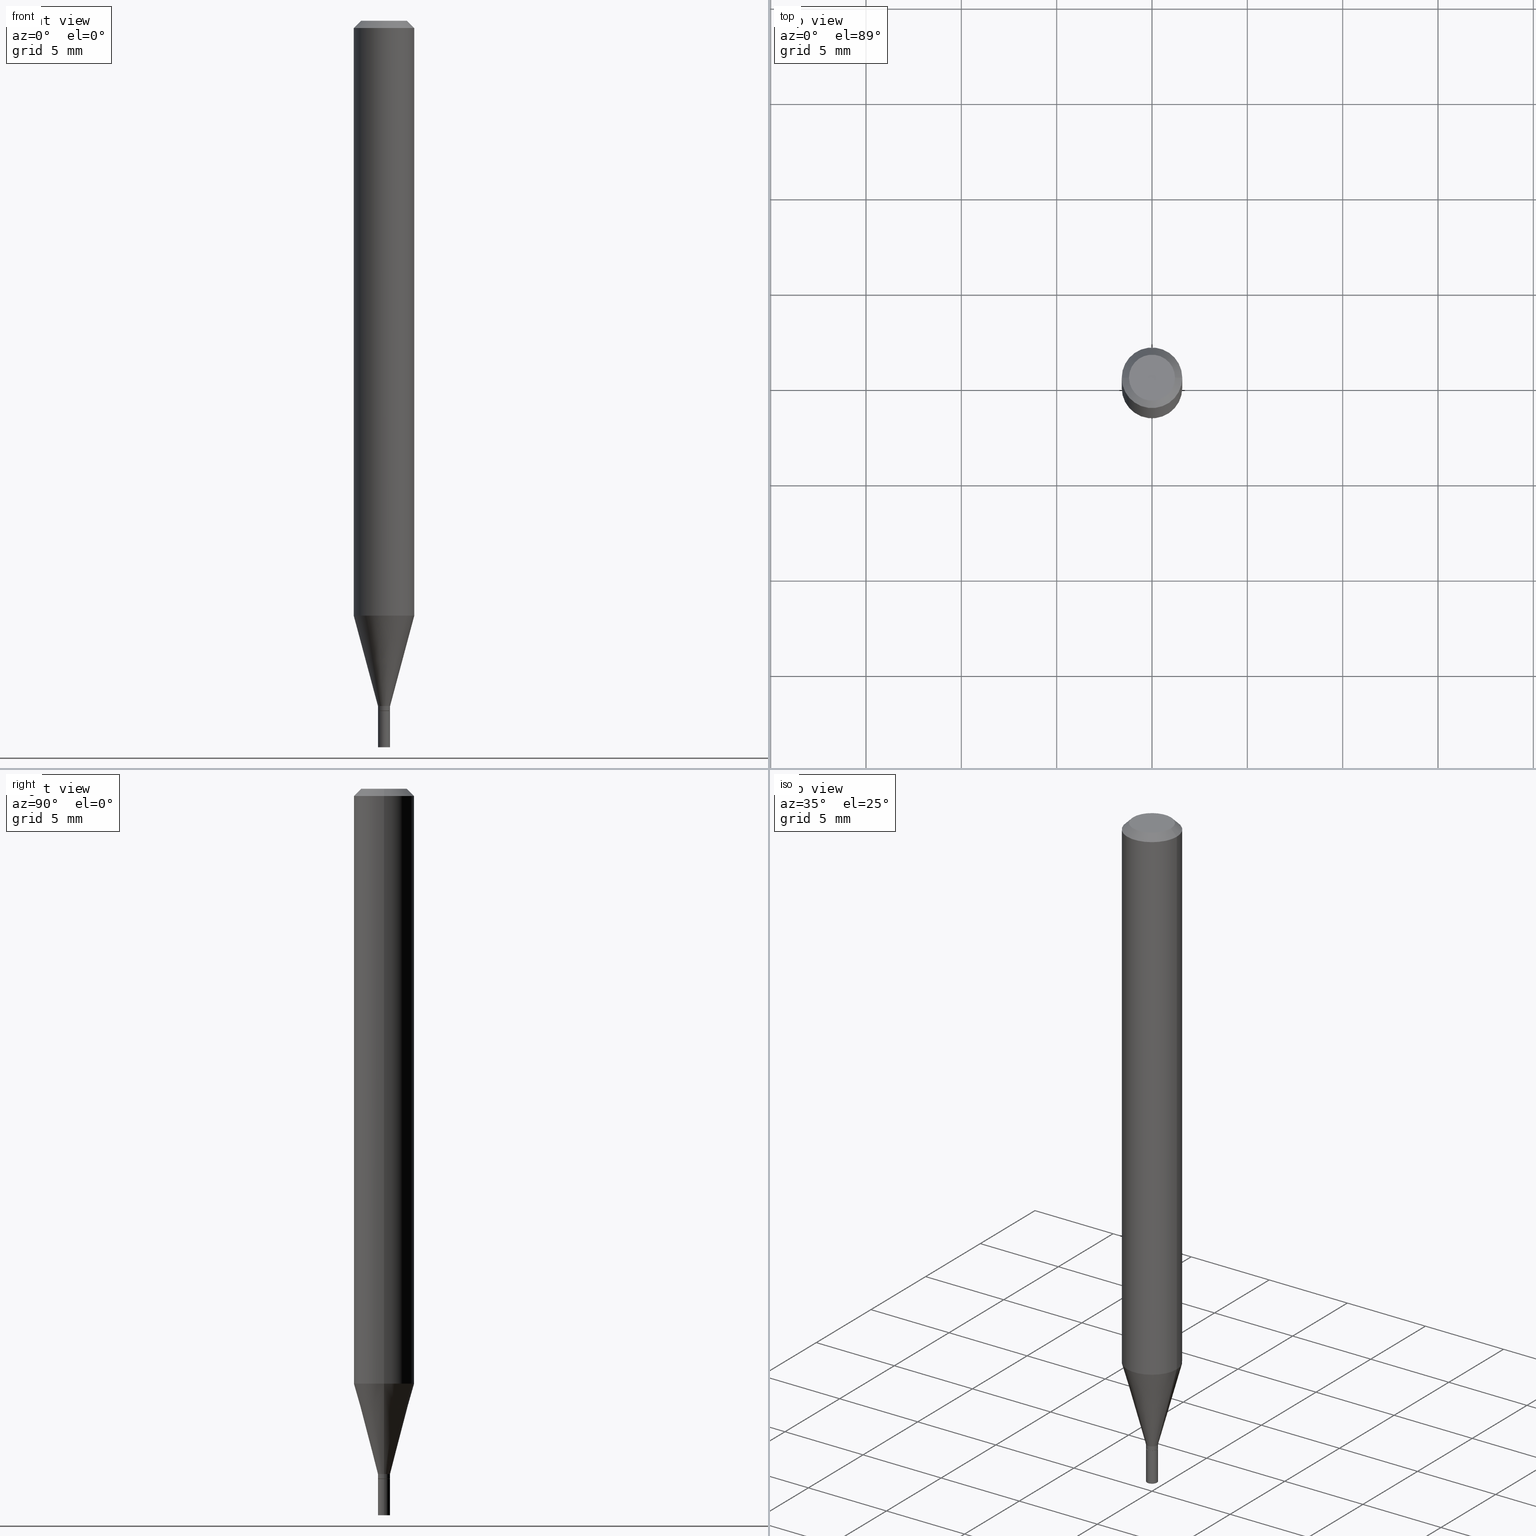
[diagram: canonical four-view strip — front | top / right | iso, engineering-drawing reading convention]
A machine part, canonical four-view strip (front | top / right | iso — engineering-drawing reading convention). The complete STEP part file that produces these views, byte-faithful:
ISO-10303-21;
HEADER;
FILE_DESCRIPTION (( 'STEP AP203' ),
    '1' );
FILE_NAME ('00831.STEP',
    '2024-03-19T22:36:11',
    ( '' ),
    ( '' ),
    'SwSTEP 2.0',
    'SolidWorks 2023',
    '' );
FILE_SCHEMA (( 'CONFIG_CONTROL_DESIGN' ));
ENDSEC;

DATA;
#1 = VECTOR ( 'NONE', #250, 39.37007874015748143 ) ;
#2 = ORIENTED_EDGE ( 'NONE', *, *, #413, .F. ) ;
#3 = CIRCLE ( 'NONE', #388, 0.06250000000000000000 ) ;
#4 = DIRECTION ( 'NONE',  ( -2.445468806185136597E-29, 3.491481338843145583E-15, 1.000000000000000000 ) ) ;
#5 = DIRECTION ( 'NONE',  ( 0.7071067811865676678, -7.319954787623323887E-15, -0.7071067811865273667 ) ) ;
#6 = CARTESIAN_POINT ( 'NONE',  ( 0.000000000000000000, 0.000000000000000000, 0.000000000000000000 ) ) ;
#7 = APPROVAL_STATUS ( 'not_yet_approved' ) ;
#8 = CIRCLE ( 'NONE', #134, 0.06250000000000000000 ) ;
#9 = CYLINDRICAL_SURFACE ( 'NONE', #191, 0.06250000000000000000 ) ;
#10 = DIRECTION ( 'NONE',  ( -2.445468806185136597E-29, 3.491481338843145583E-15, 1.000000000000000000 ) ) ;
#11 = APPROVAL_ROLE ( '' ) ;
#12 = EDGE_CURVE ( 'NONE', #447, #336, #194, .T. ) ;
#13 = EDGE_LOOP ( 'NONE', ( #398, #16, #119, #99 ) ) ;
#14 = DIRECTION ( 'NONE',  ( -2.445468806185136877E-29, 3.491481338843145188E-15, 1.000000000000000000 ) ) ;
#15 = DIRECTION ( 'NONE',  ( 1.000000000000000000, -6.982962677686262766E-15, 0.000000000000000000 ) ) ;
#16 = ORIENTED_EDGE ( 'NONE', *, *, #340, .T. ) ;
#17 = CIRCLE ( 'NONE', #150, 0.01249999999999992437 ) ;
#18 = DIRECTION ( 'NONE',  ( 0.7071067811865642261, -2.468850131082431399E-15, 0.7071067811865309194 ) ) ;
#19 = APPROVAL_ROLE ( '' ) ;
#20 = CIRCLE ( 'NONE', #416, 0.06250000000000000000 ) ;
#21 = ORIENTED_EDGE ( 'NONE', *, *, #428, .F. ) ;
#22 = CARTESIAN_POINT ( 'NONE',  ( 0.000000000000000000, 0.000000000000000000, 0.000000000000000000 ) ) ;
#23 = ORIENTED_EDGE ( 'NONE', *, *, #12, .T. ) ;
#24 = FACE_OUTER_BOUND ( 'NONE', #96, .T. ) ;
#25 = AXIS2_PLACEMENT_3D ( 'NONE', #466, #72, #293 ) ;
#26 = CYLINDRICAL_SURFACE ( 'NONE', #354, 0.01249999999999992437 ) ;
#27 = ADVANCED_FACE ( 'NONE', ( #287 ), #220, .T. ) ;
#28 = ADVANCED_FACE ( 'NONE', ( #456 ), #26, .T. ) ;
#29 = DIRECTION ( 'NONE',  ( 1.000000000000000000, -6.982962677686267499E-15, 4.852736867747366768E-29 ) ) ;
#30 = AXIS2_PLACEMENT_3D ( 'NONE', #185, #334, #256 ) ;
#31 = ADVANCED_FACE ( 'NONE', ( #459 ), #245, .T. ) ;
#32 = CARTESIAN_POINT ( 'NONE',  ( 8.728703347111317935E-17, 0.01249999999999502551, -1.425000000000000266 ) ) ;
#33 = ORIENTED_EDGE ( 'NONE', *, *, #203, .T. ) ;
#34 = CARTESIAN_POINT ( 'NONE',  ( -0.01249999999999992437, 8.881784197001198582E-17, -6.148668862818594743E-31 ) ) ;
#35 = CARTESIAN_POINT ( 'NONE',  ( 3.484793048813820547E-29, -4.975360907851483175E-15, -1.425000000000000266 ) ) ;
#36 = ORIENTED_EDGE ( 'NONE', *, *, #299, .F. ) ;
#37 = CARTESIAN_POINT ( 'NONE',  ( 0.01249999999999992437, -5.027733127934128282E-15, -1.415000000000000036 ) ) ;
#38 = ORIENTED_EDGE ( 'NONE', *, *, #244, .F. ) ;
#39 = AXIS2_PLACEMENT_3D ( 'NONE', #22, #427, #320 ) ;
#40 = ADVANCED_FACE ( 'NONE', ( #24 ), #404, .T. ) ;
#41 = CC_DESIGN_APPROVAL ( #207, ( #137 ) ) ;
#42 = CARTESIAN_POINT ( 'NONE',  ( 3.316907271900976096E-16, 0.04749999999999999362, -5.911810482194846144E-16 ) ) ;
#43 = ORIENTED_EDGE ( 'NONE', *, *, #440, .F. ) ;
#44 = DIRECTION ( 'NONE',  ( -2.445468806185136597E-29, 3.491481338843145583E-15, 1.000000000000000000 ) ) ;
#45 = CARTESIAN_POINT ( 'NONE',  ( 3.484793048813820547E-29, -4.975360907851483175E-15, -1.425000000000000266 ) ) ;
#46 = APPROVAL_DATE_TIME ( #376, #252 ) ;
#47 = AXIS2_PLACEMENT_3D ( 'NONE', #147, #107, #243 ) ;
#48 = DIRECTION ( 'NONE',  ( 1.000000000000000000, -6.982962677686262766E-15, 0.000000000000000000 ) ) ;
#49 = EDGE_CURVE ( 'NONE', #177, #189, #106, .T. ) ;
#50 = ORIENTED_EDGE ( 'NONE', *, *, #440, .T. ) ;
#51 = DIRECTION ( 'NONE',  ( -2.445468806185136597E-29, 3.491481338843145583E-15, 1.000000000000000000 ) ) ;
#52 = APPROVAL_DATE_TIME ( #90, #207 ) ;
#53 = ORIENTED_EDGE ( 'NONE', *, *, #49, .T. ) ;
#54 = DIRECTION ( 'NONE',  ( 1.000000000000000000, -6.982962677686258822E-15, 0.000000000000000000 ) ) ;
#55 = PERSON_AND_ORGANIZATION ( #168, #216 ) ;
#56 = ORIENTED_EDGE ( 'NONE', *, *, #283, .T. ) ;
#57 = ADVANCED_FACE ( 'NONE', ( #279 ), #454, .T. ) ;
#58 = CLOSED_SHELL ( 'NONE', ( #31, #120, #27, #117 ) ) ;
#59 = PERSON_AND_ORGANIZATION ( #168, #216 ) ;
#60 =( NAMED_UNIT ( * ) PLANE_ANGLE_UNIT ( ) SI_UNIT ( $, .RADIAN. ) );
#61 = CARTESIAN_POINT ( 'NONE',  ( 0.04749999999999999362, -4.035134999187593414E-16, -8.506713692488677736E-16 ) ) ;
#62 = CARTESIAN_POINT ( 'NONE',  ( 0.000000000000000000, 0.000000000000000000, 0.000000000000000000 ) ) ;
#63 = VECTOR ( 'NONE', #461, 39.37007874015748143 ) ;
#64 = PRODUCT_DEFINITION ( 'UNKNOWN', '', #137, #432 ) ;
#65 = DIRECTION ( 'NONE',  ( -2.445468806185136597E-29, 3.491481338843145583E-15, 1.000000000000000000 ) ) ;
#66 = LINE ( 'NONE', #148, #103 ) ;
#67 = APPLICATION_PROTOCOL_DEFINITION ( 'international standard', 'config_control_design', 1994, #70 ) ;
#68 = CARTESIAN_POINT ( 'NONE',  ( -0.01249999999999992437, -4.884797325212050253E-15, -1.424500000000000322 ) ) ;
#69 = ORIENTED_EDGE ( 'NONE', *, *, #413, .T. ) ;
#70 = APPLICATION_CONTEXT ( 'configuration controlled 3d designs of mechanical parts and assemblies' ) ;
#71 = ADVANCED_FACE ( 'NONE', ( #277 ), #433, .T. ) ;
#72 = DIRECTION ( 'NONE',  ( 2.445468806185136597E-29, -3.491481338843145583E-15, -1.000000000000000000 ) ) ;
#73 = ORIENTED_EDGE ( 'NONE', *, *, #299, .T. ) ;
#74 = LOCAL_TIME ( 18, 36, 11.00000000000000000, #132 ) ;
#75 = FACE_OUTER_BOUND ( 'NONE', #294, .T. ) ;
#76 = VERTEX_POINT ( 'NONE', #104 ) ;
#77 = FACE_OUTER_BOUND ( 'NONE', #142, .T. ) ;
#78 = ORIENTED_EDGE ( 'NONE', *, *, #399, .F. ) ;
#79 = DIRECTION ( 'NONE',  ( -1.000000000000000000, 6.982962677686266711E-15, 0.000000000000000000 ) ) ;
#80 = VERTEX_POINT ( 'NONE', #61 ) ;
#81 = AXIS2_PLACEMENT_3D ( 'NONE', #42, #121, #187 ) ;
#82 = VERTEX_POINT ( 'NONE', #393 ) ;
#83 = APPROVAL_PERSON_ORGANIZATION ( #136, #252, #273 ) ;
#84 = DIRECTION ( 'NONE',  ( -2.445468806185136597E-29, 3.491481338843145583E-15, 1.000000000000000000 ) ) ;
#85 = DIRECTION ( 'NONE',  ( -2.438088387897960049E-29, 3.491481338843145188E-15, 1.000000000000000000 ) ) ;
#86 = APPROVAL_STATUS ( 'not_yet_approved' ) ;
#87 = ORIENTED_EDGE ( 'NONE', *, *, #286, .F. ) ;
#88 = EDGE_CURVE ( 'NONE', #412, #177, #66, .T. ) ;
#89 = DIRECTION ( 'NONE',  ( -2.445468806185136597E-29, 3.491481338843145583E-15, 1.000000000000000000 ) ) ;
#90 = DATE_AND_TIME ( #239, #116 ) ;
#91 = ORIENTED_EDGE ( 'NONE', *, *, #280, .F. ) ;
#92 = VECTOR ( 'NONE', #124, 39.37007874015748143 ) ;
#93 = CARTESIAN_POINT ( 'NONE',  ( 3.668203209277705088E-31, -5.237222008264718399E-17, -0.01499999999999999944 ) ) ;
#94 = PERSON_AND_ORGANIZATION ( #168, #216 ) ;
#95 = EDGE_CURVE ( 'NONE', #362, #80, #310, .T. ) ;
#96 = EDGE_LOOP ( 'NONE', ( #53, #420, #101, #328 ) ) ;
#97 = FACE_OUTER_BOUND ( 'NONE', #341, .T. ) ;
#98 = PERSON_AND_ORGANIZATION ( #168, #216 ) ;
#99 = ORIENTED_EDGE ( 'NONE', *, *, #180, .F. ) ;
#100 = APPROVAL_STATUS ( 'not_yet_approved' ) ;
#101 = ORIENTED_EDGE ( 'NONE', *, *, #316, .F. ) ;
#102 =( LENGTH_UNIT ( ) NAMED_UNIT ( * ) SI_UNIT ( $, .METRE. ) );
#103 = VECTOR ( 'NONE', #353, 39.37007874015748143 ) ;
#104 = CARTESIAN_POINT ( 'NONE',  ( -0.01200000000000000198, -4.887446552386159876E-15, -1.425000000000000266 ) ) ;
#105 = ADVANCED_FACE ( 'NONE', ( #118 ), #179, .T. ) ;
#106 = CIRCLE ( 'NONE', #290, 0.01249999999999992437 ) ;
#107 = DIRECTION ( 'NONE',  ( -2.445468806185136597E-29, 3.491481338843145583E-15, 1.000000000000000000 ) ) ;
#108 = AXIS2_PLACEMENT_3D ( 'NONE', #197, #265, #162 ) ;
#109 = CARTESIAN_POINT ( 'NONE',  ( -0.06250000000000000000, 3.840629472727444916E-16, -0.01499999999999999944 ) ) ;
#110 = VERTEX_POINT ( 'NONE', #223 ) ;
#111 = DIRECTION ( 'NONE',  ( 1.000000000000000000, -6.982962677686266711E-15, 0.000000000000000000 ) ) ;
#112 = CARTESIAN_POINT ( 'NONE',  ( -0.01250000000000000069, -5.017473616088089257E-15, -1.500000000000000222 ) ) ;
#113 = CIRCLE ( 'NONE', #30, 0.04749999999999999362 ) ;
#114 = ORIENTED_EDGE ( 'NONE', *, *, #213, .T. ) ;
#115 = ORIENTED_EDGE ( 'NONE', *, *, #180, .T. ) ;
#116 = LOCAL_TIME ( 18, 36, 11.00000000000000000, #266 ) ;
#117 = ADVANCED_FACE ( 'NONE', ( #155 ), #323, .F. ) ;
#118 = FACE_OUTER_BOUND ( 'NONE', #380, .T. ) ;
#119 = ORIENTED_EDGE ( 'NONE', *, *, #88, .T. ) ;
#120 = ADVANCED_FACE ( 'NONE', ( #462 ), #152, .F. ) ;
#121 = DIRECTION ( 'NONE',  ( 2.438088387897960049E-29, -3.491481338843145188E-15, -1.000000000000000000 ) ) ;
#122 = EDGE_LOOP ( 'NONE', ( #195, #115, #438, #78 ) ) ;
#123 = CARTESIAN_POINT ( 'NONE',  ( 3.483570314410727746E-29, -4.973615167182062460E-15, -1.424500000000000322 ) ) ;
#124 = DIRECTION ( 'NONE',  ( -2.445468806185136877E-29, 3.491481338843145188E-15, 1.000000000000000000 ) ) ;
#125 = AXIS2_PLACEMENT_3D ( 'NONE', #247, #391, #181 ) ;
#126 = LINE ( 'NONE', #297, #246 ) ;
#127 = CC_DESIGN_PERSON_AND_ORGANIZATION_ASSIGNMENT ( #55, #209, ( #137 ) ) ;
#128 = CARTESIAN_POINT ( 'NONE',  ( 3.484793048813820547E-29, -4.975360907851483175E-15, -1.425000000000000266 ) ) ;
#129 = DATE_TIME_ROLE ( 'creation_date' ) ;
#130 = VERTEX_POINT ( 'NONE', #68 ) ;
#131 = DIRECTION ( 'NONE',  ( -2.445468806185136877E-29, 3.491481338843145188E-15, 1.000000000000000000 ) ) ;
#132 = COORDINATED_UNIVERSAL_TIME_OFFSET ( 5, 0, .BEHIND. ) ;
#133 =( CONVERSION_BASED_UNIT ( 'INCH', #387 ) LENGTH_UNIT ( ) NAMED_UNIT ( #321 ) );
#134 = AXIS2_PLACEMENT_3D ( 'NONE', #229, #308, #15 ) ;
#135 = DIRECTION ( 'NONE',  ( -2.445468806185136597E-29, 3.491481338843145583E-15, 1.000000000000000000 ) ) ;
#136 = PERSON_AND_ORGANIZATION ( #168, #216 ) ;
#137 = PRODUCT_DEFINITION_FORMATION_WITH_SPECIFIED_SOURCE ( 'ANY', '', #417, .NOT_KNOWN. ) ;
#138 = EDGE_CURVE ( 'NONE', #177, #110, #217, .T. ) ;
#139 = ORIENTED_EDGE ( 'NONE', *, *, #88, .F. ) ;
#140 = PRODUCT_DEFINITION_SHAPE ( 'NONE', 'NONE',  #64 ) ;
#141 = APPLICATION_CONTEXT ( 'configuration controlled 3d designs of mechanical parts and assemblies' ) ;
#142 = EDGE_LOOP ( 'NONE', ( #226, #165, #69, #409 ) ) ;
#143 = AXIS2_PLACEMENT_3D ( 'NONE', #178, #390, #29 ) ;
#144 = DIRECTION ( 'NONE',  ( 1.000000000000000000, -6.982962677686267499E-15, 4.876176775795935793E-29 ) ) ;
#145 = AXIS2_PLACEMENT_3D ( 'NONE', #45, #89, #208 ) ;
#146 = SHAPE_DEFINITION_REPRESENTATION ( #140, #274 ) ;
#147 = CARTESIAN_POINT ( 'NONE',  ( 3.460338360751968441E-29, -4.940446094463050737E-15, -1.415000000000000036 ) ) ;
#148 = CARTESIAN_POINT ( 'NONE',  ( 0.01249999999999992437, -8.728703347107781619E-17, 6.095220969744882957E-31 ) ) ;
#149 = ADVANCED_FACE ( 'NONE', ( #363 ), #159, .F. ) ;
#150 = AXIS2_PLACEMENT_3D ( 'NONE', #435, #357, #437 ) ;
#151 = LOCAL_TIME ( 18, 36, 11.00000000000000000, #442 ) ;
#152 = PLANE ( 'NONE',  #369 ) ;
#153 = CARTESIAN_POINT ( 'NONE',  ( 3.584916967085606921E-29, -5.356492647442320375E-15, -1.500000000000000222 ) ) ;
#154 = ORIENTED_EDGE ( 'NONE', *, *, #49, .F. ) ;
#155 = FACE_OUTER_BOUND ( 'NONE', #267, .T. ) ;
#156 = ORIENTED_EDGE ( 'NONE', *, *, #367, .T. ) ;
#157 = EDGE_CURVE ( 'NONE', #351, #233, #224, .T. ) ;
#158 = CONICAL_SURFACE ( 'NONE', #145, 0.01200000000000000198, 0.7853981633974718157 ) ;
#159 = PLANE ( 'NONE',  #81 ) ;
#160 = ORIENTED_EDGE ( 'NONE', *, *, #367, .F. ) ;
#161 = DIRECTION ( 'NONE',  ( 1.000000000000000000, -6.982962677686250144E-15, 0.000000000000000000 ) ) ;
#162 = DIRECTION ( 'NONE',  ( 1.000000000000000000, -6.982962677686250144E-15, 0.000000000000000000 ) ) ;
#163 = ADVANCED_FACE ( 'NONE', ( #75 ), #317, .T. ) ;
#164 = CIRCLE ( 'NONE', #424, 0.01250000000000000069 ) ;
#165 = ORIENTED_EDGE ( 'NONE', *, *, #364, .T. ) ;
#166 = CARTESIAN_POINT ( 'NONE',  ( -0.04749999999999999362, 3.578768372314195715E-16, -8.506713692488727040E-16 ) ) ;
#167 = LINE ( 'NONE', #305, #372 ) ;
#168 = PERSON ( 'UNSPECIFIED', 'UNSPECIFIED', 'UNSPECIFIED', ('UNSPECIFIED'), ('UNSPECIFIED'), ('UNSPECIFIED') ) ;
#169 = PERSON_AND_ORGANIZATION_ROLE ( 'design_supplier' ) ;
#170 = ORIENTED_EDGE ( 'NONE', *, *, #373, .F. ) ;
#171 = DIRECTION ( 'NONE',  ( 1.000000000000000000, -6.982962677686294321E-15, 0.000000000000000000 ) ) ;
#172 = DATE_AND_TIME ( #338, #460 ) ;
#173 = ORIENTED_EDGE ( 'NONE', *, *, #347, .F. ) ;
#174 = CYLINDRICAL_SURFACE ( 'NONE', #457, 0.01249999999999992437 ) ;
#175 = COORDINATED_UNIVERSAL_TIME_OFFSET ( 5, 0, .BEHIND. ) ;
#176 = SECURITY_CLASSIFICATION ( '', '', #306 ) ;
#177 = VERTEX_POINT ( 'NONE', #219 ) ;
#178 = CARTESIAN_POINT ( 'NONE',  ( 2.080290297812910479E-44, -2.970103211220577886E-30, -8.506713692488703374E-16 ) ) ;
#179 = CONICAL_SURFACE ( 'NONE', #232, 0.06250000000000000000, 0.7853981633974768117 ) ;
#180 = EDGE_CURVE ( 'NONE', #189, #177, #17, .T. ) ;
#181 = DIRECTION ( 'NONE',  ( 1.000000000000000000, -6.982962677686258822E-15, 0.000000000000000000 ) ) ;
#182 = DIRECTION ( 'NONE',  ( -2.445468806185136597E-29, 3.491481338843145583E-15, 1.000000000000000000 ) ) ;
#183 = VECTOR ( 'NONE', #257, 39.37007874015748143 ) ;
#184 = LINE ( 'NONE', #284, #259 ) ;
#185 = CARTESIAN_POINT ( 'NONE',  ( 2.080290297812910479E-44, -2.970103211220577886E-30, -8.506713692488703374E-16 ) ) ;
#186 = ORIENTED_EDGE ( 'NONE', *, *, #463, .T. ) ;
#187 = DIRECTION ( 'NONE',  ( -1.000000000000000000, 6.982962677686265922E-15, -4.876176775795935793E-29 ) ) ;
#188 = ORIENTED_EDGE ( 'NONE', *, *, #347, .T. ) ;
#189 = VERTEX_POINT ( 'NONE', #360 ) ;
#190 = DIRECTION ( 'NONE',  ( -2.445468806185136597E-29, 3.491481338843145583E-15, 1.000000000000000000 ) ) ;
#191 = AXIS2_PLACEMENT_3D ( 'NONE', #6, #199, #234 ) ;
#192 = AXIS2_PLACEMENT_3D ( 'NONE', #263, #84, #171 ) ;
#193 = LINE ( 'NONE', #397, #63 ) ;
#194 = LINE ( 'NONE', #335, #92 ) ;
#195 = ORIENTED_EDGE ( 'NONE', *, *, #196, .F. ) ;
#196 = EDGE_CURVE ( 'NONE', #189, #447, #193, .T. ) ;
#197 = CARTESIAN_POINT ( 'NONE',  ( 3.484793048813820547E-29, -4.975360907851483175E-15, -1.425000000000000266 ) ) ;
#198 = DIRECTION ( 'NONE',  ( 1.000000000000000000, 0.000000000000000000, 0.000000000000000000 ) ) ;
#199 = DIRECTION ( 'NONE',  ( -2.445468806185136597E-29, 3.491481338843145583E-15, 1.000000000000000000 ) ) ;
#200 = VERTEX_POINT ( 'NONE', #401 ) ;
#201 = FACE_OUTER_BOUND ( 'NONE', #13, .T. ) ;
#202 = PERSON_AND_ORGANIZATION_ROLE ( 'design_owner' ) ;
#203 = EDGE_CURVE ( 'NONE', #80, #362, #113, .T. ) ;
#204 = ORIENTED_EDGE ( 'NONE', *, *, #364, .F. ) ;
#205 = DIRECTION ( 'NONE',  ( 1.000000000000000000, -6.982962677686266711E-15, 0.000000000000000000 ) ) ;
#206 = COORDINATED_UNIVERSAL_TIME_OFFSET ( 5, 0, .BEHIND. ) ;
#207 = APPROVAL ( #100, 'UNSPECIFIED' ) ;
#208 = DIRECTION ( 'NONE',  ( 1.000000000000000000, -6.982962677686250144E-15, 0.000000000000000000 ) ) ;
#209 = PERSON_AND_ORGANIZATION_ROLE ( 'creator' ) ;
#210 = ORIENTED_EDGE ( 'NONE', *, *, #434, .T. ) ;
#211 = EDGE_CURVE ( 'NONE', #80, #251, #184, .T. ) ;
#212 = EDGE_LOOP ( 'NONE', ( #276, #445, #292, #43 ) ) ;
#213 = EDGE_CURVE ( 'NONE', #200, #76, #215, .T. ) ;
#214 = DIRECTION ( 'NONE',  ( 0.000000000000000000, 0.000000000000000000, 1.000000000000000000 ) ) ;
#215 = CIRCLE ( 'NONE', #385, 0.01200000000000000198 ) ;
#216 = ORGANIZATION ( 'UNSPECIFIED', 'UNSPECIFIED', '' ) ;
#217 = LINE ( 'NONE', #37, #322 ) ;
#218 = AXIS2_PLACEMENT_3D ( 'NONE', #128, #85, #383 ) ;
#219 = CARTESIAN_POINT ( 'NONE',  ( 0.01249999999999992437, -5.027733127934128282E-15, -1.415000000000000036 ) ) ;
#220 = CYLINDRICAL_SURFACE ( 'NONE', #330, 0.01250000000000000069 ) ;
#221 = CARTESIAN_POINT ( 'NONE',  ( 3.668203209277705088E-31, -5.237222008264718399E-17, -0.01499999999999999944 ) ) ;
#222 = CARTESIAN_POINT ( 'NONE',  ( 3.484793048813820547E-29, -4.975360907851483175E-15, -1.425000000000000266 ) ) ;
#223 = CARTESIAN_POINT ( 'NONE',  ( 0.06250000000000001388, -4.725361974306381794E-15, -1.228397459621556109 ) ) ;
#224 = CIRCLE ( 'NONE', #349, 0.01250000000000000069 ) ;
#225 = EDGE_LOOP ( 'NONE', ( #173, #345, #368, #311 ) ) ;
#226 = ORIENTED_EDGE ( 'NONE', *, *, #434, .F. ) ;
#227 = CIRCLE ( 'NONE', #108, 0.01200000000000000198 ) ;
#228 = CARTESIAN_POINT ( 'NONE',  ( 0.01200000000000000198, -5.059156459983718502E-15, -1.425000000000000266 ) ) ;
#229 = CARTESIAN_POINT ( 'NONE',  ( 3.004007669101581496E-29, -4.288926806950990124E-15, -1.228397459621556109 ) ) ;
#230 = CALENDAR_DATE ( 2024, 19, 3 ) ;
#231 = DIRECTION ( 'NONE',  ( 1.000000000000000000, -6.982962677686294321E-15, 0.000000000000000000 ) ) ;
#232 = AXIS2_PLACEMENT_3D ( 'NONE', #221, #249, #79 ) ;
#233 = VERTEX_POINT ( 'NONE', #112 ) ;
#234 = DIRECTION ( 'NONE',  ( 1.000000000000000000, -6.982962677686266711E-15, 4.876176775795935793E-29 ) ) ;
#235 = CC_DESIGN_PERSON_AND_ORGANIZATION_ASSIGNMENT ( #444, #202, ( #417 ) ) ;
#236 = PERSON_AND_ORGANIZATION_ROLE ( 'classification_officer' ) ;
#237 = DIRECTION ( 'NONE',  ( -2.445468806185136597E-29, 3.491481338843145583E-15, 1.000000000000000000 ) ) ;
#238 = ORIENTED_EDGE ( 'NONE', *, *, #157, .T. ) ;
#239 = CALENDAR_DATE ( 2024, 19, 3 ) ;
#240 = CIRCLE ( 'NONE', #270, 0.01250000000000000069 ) ;
#241 = ORIENTED_EDGE ( 'NONE', *, *, #95, .F. ) ;
#242 = VECTOR ( 'NONE', #14, 39.37007874015748143 ) ;
#243 = DIRECTION ( 'NONE',  ( 1.000000000000000000, -6.982962677686258822E-15, 0.000000000000000000 ) ) ;
#244 = EDGE_CURVE ( 'NONE', #351, #82, #254, .T. ) ;
#245 = CYLINDRICAL_SURFACE ( 'NONE', #39, 0.01250000000000000069 ) ;
#246 = VECTOR ( 'NONE', #339, 39.37007874015748143 ) ;
#247 = CARTESIAN_POINT ( 'NONE',  ( 3.460338360751968441E-29, -4.940446094463050737E-15, -1.415000000000000036 ) ) ;
#248 = APPROVAL_PERSON_ORGANIZATION ( #382, #333, #19 ) ;
#249 = DIRECTION ( 'NONE',  ( 2.445468806185136597E-29, -3.491481338843145583E-15, -1.000000000000000000 ) ) ;
#250 = DIRECTION ( 'NONE',  ( -0.7071067811865676678, 2.468850131082468081E-15, -0.7071067811865273667 ) ) ;
#251 = VERTEX_POINT ( 'NONE', #400 ) ;
#252 = APPROVAL ( #7, 'UNSPECIFIED' ) ;
#253 = CARTESIAN_POINT ( 'NONE',  ( -0.06250000000000001388, -3.844837597100926719E-15, -1.228397459621556109 ) ) ;
#254 = LINE ( 'NONE', #430, #183 ) ;
#255 = VECTOR ( 'NONE', #381, 39.37007874015748143 ) ;
#256 = DIRECTION ( 'NONE',  ( 1.000000000000000000, -6.982962677686267499E-15, 4.852736867747366768E-29 ) ) ;
#257 = DIRECTION ( 'NONE',  ( -2.445468806185136877E-29, 3.491481338843145188E-15, 1.000000000000000000 ) ) ;
#258 = EDGE_LOOP ( 'NONE', ( #238, #188, #36, #38 ) ) ;
#259 = VECTOR ( 'NONE', #5, 39.37007874015748143 ) ;
#260 = CARTESIAN_POINT ( 'NONE',  ( -0.01250000000000000069, -5.017473616088089257E-15, -1.425000000000000266 ) ) ;
#261 = ORIENTED_EDGE ( 'NONE', *, *, #203, .F. ) ;
#262 = CIRCLE ( 'NONE', #429, 0.06250000000000000000 ) ;
#263 = CARTESIAN_POINT ( 'NONE',  ( 3.668203209277704895E-29, -5.237222008264718177E-15, -1.500000000000000222 ) ) ;
#264 = CALENDAR_DATE ( 2024, 19, 3 ) ;
#265 = DIRECTION ( 'NONE',  ( -2.445468806185136597E-29, 3.491481338843145583E-15, 1.000000000000000000 ) ) ;
#266 = COORDINATED_UNIVERSAL_TIME_OFFSET ( 5, 0, .BEHIND. ) ;
#267 = EDGE_LOOP ( 'NONE', ( #73, #56 ) ) ;
#268 = ADVANCED_FACE ( 'NONE', ( #77 ), #396, .T. ) ;
#269 = LINE ( 'NONE', #415, #255 ) ;
#270 = AXIS2_PLACEMENT_3D ( 'NONE', #394, #10, #231 ) ;
#271 = CC_DESIGN_APPROVAL ( #252, ( #176 ) ) ;
#272 = CARTESIAN_POINT ( 'NONE',  ( 3.668203209277705088E-31, -5.237222008264718399E-17, -0.01499999999999999944 ) ) ;
#273 = APPROVAL_ROLE ( '' ) ;
#274 = ADVANCED_BREP_SHAPE_REPRESENTATION ( '00831', ( #365, #370, #312 ), #450 ) ;
#275 = APPROVAL_DATE_TIME ( #314, #333 ) ;
#276 = ORIENTED_EDGE ( 'NONE', *, *, #12, .F. ) ;
#277 = FACE_OUTER_BOUND ( 'NONE', #122, .T. ) ;
#278 = AXIS2_PLACEMENT_3D ( 'NONE', #123, #418, #54 ) ;
#279 = FACE_OUTER_BOUND ( 'NONE', #436, .T. ) ;
#280 = EDGE_CURVE ( 'NONE', #362, #336, #295, .T. ) ;
#281 = AXIS2_PLACEMENT_3D ( 'NONE', #32, #288, #324 ) ;
#282 = CARTESIAN_POINT ( 'NONE',  ( 0.000000000000000000, 0.000000000000000000, 0.000000000000000000 ) ) ;
#283 = EDGE_CURVE ( 'NONE', #350, #82, #240, .T. ) ;
#284 = CARTESIAN_POINT ( 'NONE',  ( 0.06250000000000000000, -4.811533449433679005E-16, -0.01499999999999999944 ) ) ;
#285 = UNCERTAINTY_MEASURE_WITH_UNIT (LENGTH_MEASURE( 1.000000000000000082E-05 ), #133, 'distance_accuracy_value', 'NONE');
#286 = EDGE_CURVE ( 'NONE', #412, #130, #377, .T. ) ;
#287 = FACE_OUTER_BOUND ( 'NONE', #225, .T. ) ;
#288 = DIRECTION ( 'NONE',  ( 2.438088387897960049E-29, -3.491481338843145188E-15, -1.000000000000000000 ) ) ;
#289 = DIRECTION ( 'NONE',  ( 1.000000000000000000, -6.982962677686267499E-15, 4.876176775795936353E-29 ) ) ;
#290 = AXIS2_PLACEMENT_3D ( 'NONE', #318, #65, #355 ) ;
#291 = DIRECTION ( 'NONE',  ( 1.000000000000000000, -6.982962677686250144E-15, 0.000000000000000000 ) ) ;
#292 = ORIENTED_EDGE ( 'NONE', *, *, #428, .T. ) ;
#293 = DIRECTION ( 'NONE',  ( -1.000000000000000000, 6.982962677686266711E-15, 0.000000000000000000 ) ) ;
#294 = EDGE_LOOP ( 'NONE', ( #304, #241, #315, #50 ) ) ;
#295 = LINE ( 'NONE', #109, #1 ) ;
#296 = AXIS2_PLACEMENT_3D ( 'NONE', #374, #342, #408 ) ;
#297 = CARTESIAN_POINT ( 'NONE',  ( -0.01250000000000000069, 8.881784197001252816E-17, -6.148668862818633278E-31 ) ) ;
#298 = DATE_AND_TIME ( #419, #74 ) ;
#299 = EDGE_CURVE ( 'NONE', #82, #350, #164, .T. ) ;
#300 = ORIENTED_EDGE ( 'NONE', *, *, #157, .F. ) ;
#301 = LOCAL_TIME ( 18, 36, 11.00000000000000000, #175 ) ;
#302 = CARTESIAN_POINT ( 'NONE',  ( 0.01249999999999992437, -5.060902200653140005E-15, -1.424500000000000322 ) ) ;
#303 = ADVANCED_FACE ( 'NONE', ( #405 ), #348, .F. ) ;
#304 = ORIENTED_EDGE ( 'NONE', *, *, #211, .F. ) ;
#305 = CARTESIAN_POINT ( 'NONE',  ( 0.06250000000000000000, -4.364351673553916694E-16, 3.047610484872459871E-30 ) ) ;
#306 = SECURITY_CLASSIFICATION_LEVEL ( 'unclassified' ) ;
#307 = ORIENTED_EDGE ( 'NONE', *, *, #95, .T. ) ;
#308 = DIRECTION ( 'NONE',  ( -2.445468806185136597E-29, 3.491481338843145583E-15, 1.000000000000000000 ) ) ;
#309 = DATE_TIME_ROLE ( 'classification_date' ) ;
#310 = CIRCLE ( 'NONE', #143, 0.04749999999999999362 ) ;
#311 = ORIENTED_EDGE ( 'NONE', *, *, #283, .F. ) ;
#312 = AXIS2_PLACEMENT_3D ( 'NONE', #62, #214, #198 ) ;
#313 = CARTESIAN_POINT ( 'NONE',  ( 0.000000000000000000, 0.000000000000000000, 0.000000000000000000 ) ) ;
#314 = DATE_AND_TIME ( #264, #301 ) ;
#315 = ORIENTED_EDGE ( 'NONE', *, *, #280, .T. ) ;
#316 = EDGE_CURVE ( 'NONE', #110, #447, #8, .T. ) ;
#317 = CONICAL_SURFACE ( 'NONE', #25, 0.06250000000000000000, 0.7853981633974768117 ) ;
#318 = CARTESIAN_POINT ( 'NONE',  ( 3.460338360751968441E-29, -4.940446094463050737E-15, -1.415000000000000036 ) ) ;
#319 = ADVANCED_FACE ( 'NONE', ( #449 ), #9, .T. ) ;
#320 = DIRECTION ( 'NONE',  ( 1.000000000000000000, -6.982962677686267499E-15, 4.876176775795936353E-29 ) ) ;
#321 = DIMENSIONAL_EXPONENTS ( 1.000000000000000000, 0.000000000000000000, 0.000000000000000000, 0.000000000000000000, 0.000000000000000000, 0.000000000000000000, 0.000000000000000000 ) ;
#322 = VECTOR ( 'NONE', #439, 39.37007874015748143 ) ;
#323 = PLANE ( 'NONE',  #281 ) ;
#324 = DIRECTION ( 'NONE',  ( -1.000000000000000000, 6.982962677686265922E-15, -4.876176775795935793E-29 ) ) ;
#325 = CARTESIAN_POINT ( 'NONE',  ( 0.000000000000000000, 0.000000000000000000, 0.000000000000000000 ) ) ;
#326 = ORIENTED_EDGE ( 'NONE', *, *, #211, .T. ) ;
#327 = CARTESIAN_POINT ( 'NONE',  ( 3.668203209277704895E-29, -5.237222008264718177E-15, -1.500000000000000222 ) ) ;
#328 = ORIENTED_EDGE ( 'NONE', *, *, #138, .F. ) ;
#329 = EDGE_LOOP ( 'NONE', ( #307, #33 ) ) ;
#330 = AXIS2_PLACEMENT_3D ( 'NONE', #325, #464, #289 ) ;
#331 = DIRECTION ( 'NONE',  ( 1.000000000000000000, -6.982962677686294321E-15, 0.000000000000000000 ) ) ;
#332 = CC_DESIGN_APPROVAL ( #333, ( #64 ) ) ;
#333 = APPROVAL ( #86, 'UNSPECIFIED' ) ;
#334 = DIRECTION ( 'NONE',  ( -2.445468806185136597E-29, 3.491481338843145583E-15, 1.000000000000000000 ) ) ;
#335 = CARTESIAN_POINT ( 'NONE',  ( -0.06250000000000000000, 4.440892098500626162E-16, -3.074334431409316114E-30 ) ) ;
#336 = VERTEX_POINT ( 'NONE', #443 ) ;
#337 = DIRECTION ( 'NONE',  ( 1.000000000000000000, -6.982962677686267499E-15, 4.876176775795935793E-29 ) ) ;
#338 = CALENDAR_DATE ( 2024, 19, 3 ) ;
#339 = DIRECTION ( 'NONE',  ( -2.445468806185136877E-29, 3.491481338843145188E-15, 1.000000000000000000 ) ) ;
#340 = EDGE_CURVE ( 'NONE', #130, #412, #448, .T. ) ;
#341 = EDGE_LOOP ( 'NONE', ( #114, #210, #87, #2 ) ) ;
#342 = DIRECTION ( 'NONE',  ( -2.445468806185136597E-29, 3.491481338843145583E-15, 1.000000000000000000 ) ) ;
#343 = PERSON_AND_ORGANIZATION ( #168, #216 ) ;
#344 = CARTESIAN_POINT ( 'NONE',  ( 3.484793048813820547E-29, -4.975360907851483175E-15, -1.425000000000000266 ) ) ;
#345 = ORIENTED_EDGE ( 'NONE', *, *, #373, .T. ) ;
#346 = CC_DESIGN_DATE_AND_TIME_ASSIGNMENT ( #172, #309, ( #176 ) ) ;
#347 = EDGE_CURVE ( 'NONE', #233, #350, #126, .T. ) ;
#348 = PLANE ( 'NONE',  #218 ) ;
#349 = AXIS2_PLACEMENT_3D ( 'NONE', #327, #4, #331 ) ;
#350 = VERTEX_POINT ( 'NONE', #260 ) ;
#351 = VERTEX_POINT ( 'NONE', #375 ) ;
#352 = LINE ( 'NONE', #34, #242 ) ;
#353 = DIRECTION ( 'NONE',  ( -2.445468806185136877E-29, 3.491481338843145188E-15, 1.000000000000000000 ) ) ;
#354 = AXIS2_PLACEMENT_3D ( 'NONE', #386, #389, #144 ) ;
#355 = DIRECTION ( 'NONE',  ( 1.000000000000000000, -6.982962677686258822E-15, 0.000000000000000000 ) ) ;
#356 = CC_DESIGN_PERSON_AND_ORGANIZATION_ASSIGNMENT ( #59, #169, ( #137 ) ) ;
#357 = DIRECTION ( 'NONE',  ( -2.445468806185136597E-29, 3.491481338843145583E-15, 1.000000000000000000 ) ) ;
#358 =( NAMED_UNIT ( * ) SI_UNIT ( $, .STERADIAN. ) SOLID_ANGLE_UNIT ( ) );
#359 = CLOSED_SHELL ( 'NONE', ( #28, #402, #105, #57, #40, #71, #319, #163, #149, #303, #268, #422 ) ) ;
#360 = CARTESIAN_POINT ( 'NONE',  ( -0.01249999999999992437, -4.348232924796983019E-15, -1.415000000000000036 ) ) ;
#361 = CIRCLE ( 'NONE', #192, 0.01250000000000000069 ) ;
#362 = VERTEX_POINT ( 'NONE', #166 ) ;
#363 = FACE_OUTER_BOUND ( 'NONE', #329, .T. ) ;
#364 = EDGE_CURVE ( 'NONE', #76, #200, #227, .T. ) ;
#365 = MANIFOLD_SOLID_BREP ( 'Body-Move/Copy2[1]', #58 ) ;
#366 = DIRECTION ( 'NONE',  ( -2.438088387897960049E-29, 3.491481338843145188E-15, 1.000000000000000000 ) ) ;
#367 = EDGE_CURVE ( 'NONE', #251, #336, #262, .T. ) ;
#368 = ORIENTED_EDGE ( 'NONE', *, *, #244, .T. ) ;
#369 = AXIS2_PLACEMENT_3D ( 'NONE', #153, #366, #371 ) ;
#370 = MANIFOLD_SOLID_BREP ( 'Body-Move/Copy2[2]', #359 ) ;
#371 = DIRECTION ( 'NONE',  ( 1.000000000000000000, -6.982962677686265922E-15, 4.876176775795935793E-29 ) ) ;
#372 = VECTOR ( 'NONE', #131, 39.37007874015748143 ) ;
#373 = EDGE_CURVE ( 'NONE', #233, #351, #361, .T. ) ;
#374 = CARTESIAN_POINT ( 'NONE',  ( 3.483570314410727746E-29, -4.973615167182062460E-15, -1.424500000000000322 ) ) ;
#375 = CARTESIAN_POINT ( 'NONE',  ( 0.01250000000000000069, -5.324509041735797299E-15, -1.500000000000000222 ) ) ;
#376 = DATE_AND_TIME ( #230, #151 ) ;
#377 = CIRCLE ( 'NONE', #296, 0.01249999999999992437 ) ;
#378 = LINE ( 'NONE', #228, #392 ) ;
#379 = APPROVAL_PERSON_ORGANIZATION ( #98, #207, #11 ) ;
#380 = EDGE_LOOP ( 'NONE', ( #261, #326, #156, #91 ) ) ;
#381 = DIRECTION ( 'NONE',  ( -0.7071067811865642261, 7.493145998870414114E-15, 0.7071067811865309194 ) ) ;
#382 = PERSON_AND_ORGANIZATION ( #168, #216 ) ;
#383 = DIRECTION ( 'NONE',  ( 1.000000000000000000, -6.982962677686265922E-15, 4.876176775795935793E-29 ) ) ;
#384 = ORIENTED_EDGE ( 'NONE', *, *, #316, .T. ) ;
#385 = AXIS2_PLACEMENT_3D ( 'NONE', #35, #431, #291 ) ;
#386 = CARTESIAN_POINT ( 'NONE',  ( 0.000000000000000000, 0.000000000000000000, 0.000000000000000000 ) ) ;
#387 = LENGTH_MEASURE_WITH_UNIT ( LENGTH_MEASURE( 0.02539999999999999897 ), #102 );
#388 = AXIS2_PLACEMENT_3D ( 'NONE', #93, #51, #111 ) ;
#389 = DIRECTION ( 'NONE',  ( -2.445468806185136597E-29, 3.491481338843145583E-15, 1.000000000000000000 ) ) ;
#390 = DIRECTION ( 'NONE',  ( -2.445468806185136597E-29, 3.491481338843145583E-15, 1.000000000000000000 ) ) ;
#391 = DIRECTION ( 'NONE',  ( -2.445468806185136597E-29, 3.491481338843145583E-15, 1.000000000000000000 ) ) ;
#392 = VECTOR ( 'NONE', #18, 39.37007874015748143 ) ;
#393 = CARTESIAN_POINT ( 'NONE',  ( 0.01250000000000000069, -5.062647941322562298E-15, -1.425000000000000266 ) ) ;
#394 = CARTESIAN_POINT ( 'NONE',  ( 3.484793048813820547E-29, -4.975360907851483175E-15, -1.425000000000000266 ) ) ;
#395 = EDGE_LOOP ( 'NONE', ( #403, #204 ) ) ;
#396 = CONICAL_SURFACE ( 'NONE', #455, 0.01200000000000000198, 0.7853981633974718157 ) ;
#397 = CARTESIAN_POINT ( 'NONE',  ( -0.01249999999999992437, -4.851628252493038529E-15, -1.415000000000000036 ) ) ;
#398 = ORIENTED_EDGE ( 'NONE', *, *, #463, .F. ) ;
#399 = EDGE_CURVE ( 'NONE', #447, #110, #20, .T. ) ;
#400 = CARTESIAN_POINT ( 'NONE',  ( 0.06250000000000000000, -4.888073874380388472E-16, -0.01499999999999999944 ) ) ;
#401 = CARTESIAN_POINT ( 'NONE',  ( 0.01200000000000000198, -5.059156459983718502E-15, -1.425000000000000266 ) ) ;
#402 = ADVANCED_FACE ( 'NONE', ( #97 ), #158, .T. ) ;
#403 = ORIENTED_EDGE ( 'NONE', *, *, #213, .F. ) ;
#404 = CONICAL_SURFACE ( 'NONE', #47, 0.01249999999999992437, 0.2617993877991497964 ) ;
#405 = FACE_OUTER_BOUND ( 'NONE', #395, .T. ) ;
#406 = CC_DESIGN_SECURITY_CLASSIFICATION ( #176, ( #137 ) ) ;
#407 = CC_DESIGN_DATE_AND_TIME_ASSIGNMENT ( #298, #129, ( #64 ) ) ;
#408 = DIRECTION ( 'NONE',  ( 1.000000000000000000, -6.982962677686258822E-15, 0.000000000000000000 ) ) ;
#409 = ORIENTED_EDGE ( 'NONE', *, *, #340, .F. ) ;
#410 = DIRECTION ( 'NONE',  ( -2.445468806185136597E-29, 3.491481338843145583E-15, 1.000000000000000000 ) ) ;
#411 = APPLICATION_PROTOCOL_DEFINITION ( 'international standard', 'config_control_design', 1994, #141 ) ;
#412 = VERTEX_POINT ( 'NONE', #302 ) ;
#413 = EDGE_CURVE ( 'NONE', #200, #412, #378, .T. ) ;
#414 = AXIS2_PLACEMENT_3D ( 'NONE', #282, #182, #426 ) ;
#415 = CARTESIAN_POINT ( 'NONE',  ( -0.01200000000000000198, -4.890095779560271077E-15, -1.425000000000000266 ) ) ;
#416 = AXIS2_PLACEMENT_3D ( 'NONE', #446, #410, #48 ) ;
#417 = PRODUCT ( '00831', '00831', '', ( #451 ) ) ;
#418 = DIRECTION ( 'NONE',  ( -2.445468806185136597E-29, 3.491481338843145583E-15, 1.000000000000000000 ) ) ;
#419 = CALENDAR_DATE ( 2024, 19, 3 ) ;
#420 = ORIENTED_EDGE ( 'NONE', *, *, #196, .T. ) ;
#421 = PERSON_AND_ORGANIZATION_ROLE ( 'creator' ) ;
#422 = ADVANCED_FACE ( 'NONE', ( #201 ), #174, .T. ) ;
#423 = EDGE_LOOP ( 'NONE', ( #300, #170 ) ) ;
#424 = AXIS2_PLACEMENT_3D ( 'NONE', #344, #237, #441 ) ;
#425 = PRODUCT_RELATED_PRODUCT_CATEGORY ( 'detail', '', ( #417 ) ) ;
#426 = DIRECTION ( 'NONE',  ( 1.000000000000000000, -6.982962677686266711E-15, 4.876176775795935793E-29 ) ) ;
#427 = DIRECTION ( 'NONE',  ( -2.445468806185136597E-29, 3.491481338843145583E-15, 1.000000000000000000 ) ) ;
#428 = EDGE_CURVE ( 'NONE', #110, #251, #167, .T. ) ;
#429 = AXIS2_PLACEMENT_3D ( 'NONE', #272, #135, #205 ) ;
#430 = CARTESIAN_POINT ( 'NONE',  ( 0.01250000000000000069, -8.728703347107834621E-17, 6.095220969744920617E-31 ) ) ;
#431 = DIRECTION ( 'NONE',  ( -2.445468806185136597E-29, 3.491481338843145583E-15, 1.000000000000000000 ) ) ;
#432 = DESIGN_CONTEXT ( 'detailed design', #141, 'design' ) ;
#433 = CONICAL_SURFACE ( 'NONE', #125, 0.01249999999999992437, 0.2617993877991497964 ) ;
#434 = EDGE_CURVE ( 'NONE', #76, #130, #269, .T. ) ;
#435 = CARTESIAN_POINT ( 'NONE',  ( 3.460338360751968441E-29, -4.940446094463050737E-15, -1.415000000000000036 ) ) ;
#436 = EDGE_LOOP ( 'NONE', ( #384, #23, #160, #21 ) ) ;
#437 = DIRECTION ( 'NONE',  ( 1.000000000000000000, -6.982962677686258822E-15, 0.000000000000000000 ) ) ;
#438 = ORIENTED_EDGE ( 'NONE', *, *, #138, .T. ) ;
#439 = DIRECTION ( 'NONE',  ( 0.2588190451025211281, 1.565188264969623940E-15, 0.9659258262890682012 ) ) ;
#440 = EDGE_CURVE ( 'NONE', #336, #251, #3, .T. ) ;
#441 = DIRECTION ( 'NONE',  ( 1.000000000000000000, -6.982962677686294321E-15, 0.000000000000000000 ) ) ;
#442 = COORDINATED_UNIVERSAL_TIME_OFFSET ( 5, 0, .BEHIND. ) ;
#443 = CARTESIAN_POINT ( 'NONE',  ( -0.06250000000000000000, -1.726560303666755986E-15, -0.01499999999999999944 ) ) ;
#444 = PERSON_AND_ORGANIZATION ( #168, #216 ) ;
#445 = ORIENTED_EDGE ( 'NONE', *, *, #399, .T. ) ;
#446 = CARTESIAN_POINT ( 'NONE',  ( 3.004007669101581496E-29, -4.288926806950990124E-15, -1.228397459621556109 ) ) ;
#447 = VERTEX_POINT ( 'NONE', #253 ) ;
#448 = CIRCLE ( 'NONE', #278, 0.01249999999999992437 ) ;
#449 = FACE_OUTER_BOUND ( 'NONE', #212, .T. ) ;
#450 =( GEOMETRIC_REPRESENTATION_CONTEXT ( 3 ) GLOBAL_UNCERTAINTY_ASSIGNED_CONTEXT ( ( #285 ) ) GLOBAL_UNIT_ASSIGNED_CONTEXT ( ( #133, #60, #358 ) ) REPRESENTATION_CONTEXT ( 'NONE', 'WORKASPACE' ) );
#451 = MECHANICAL_CONTEXT ( 'NONE', #70, 'mechanical' ) ;
#452 = EDGE_LOOP ( 'NONE', ( #465, #186, #154, #139 ) ) ;
#453 = CC_DESIGN_PERSON_AND_ORGANIZATION_ASSIGNMENT ( #343, #421, ( #64 ) ) ;
#454 = CYLINDRICAL_SURFACE ( 'NONE', #414, 0.06250000000000000000 ) ;
#455 = AXIS2_PLACEMENT_3D ( 'NONE', #222, #190, #161 ) ;
#456 = FACE_OUTER_BOUND ( 'NONE', #452, .T. ) ;
#457 = AXIS2_PLACEMENT_3D ( 'NONE', #313, #44, #337 ) ;
#458 = CC_DESIGN_PERSON_AND_ORGANIZATION_ASSIGNMENT ( #94, #236, ( #176 ) ) ;
#459 = FACE_OUTER_BOUND ( 'NONE', #258, .T. ) ;
#460 = LOCAL_TIME ( 18, 36, 11.00000000000000000, #206 ) ;
#461 = DIRECTION ( 'NONE',  ( -0.2588190451025211281, 5.211531920934548675E-15, 0.9659258262890682012 ) ) ;
#462 = FACE_OUTER_BOUND ( 'NONE', #423, .T. ) ;
#463 = EDGE_CURVE ( 'NONE', #130, #189, #352, .T. ) ;
#464 = DIRECTION ( 'NONE',  ( -2.445468806185136597E-29, 3.491481338843145583E-15, 1.000000000000000000 ) ) ;
#465 = ORIENTED_EDGE ( 'NONE', *, *, #286, .T. ) ;
#466 = CARTESIAN_POINT ( 'NONE',  ( 3.668203209277705088E-31, -5.237222008264718399E-17, -0.01499999999999999944 ) ) ;
ENDSEC;
END-ISO-10303-21;
